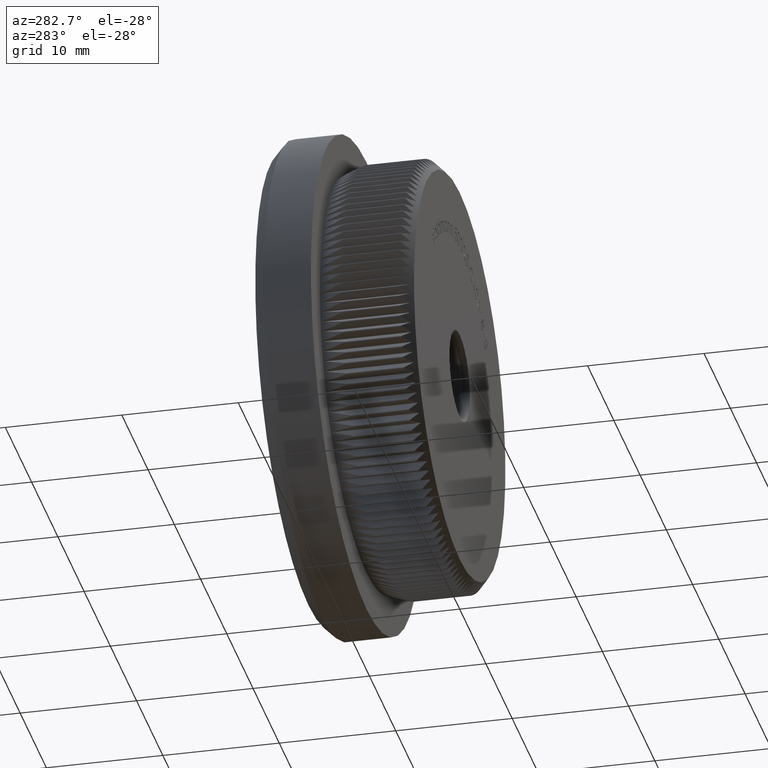
[diagram: clean part render]
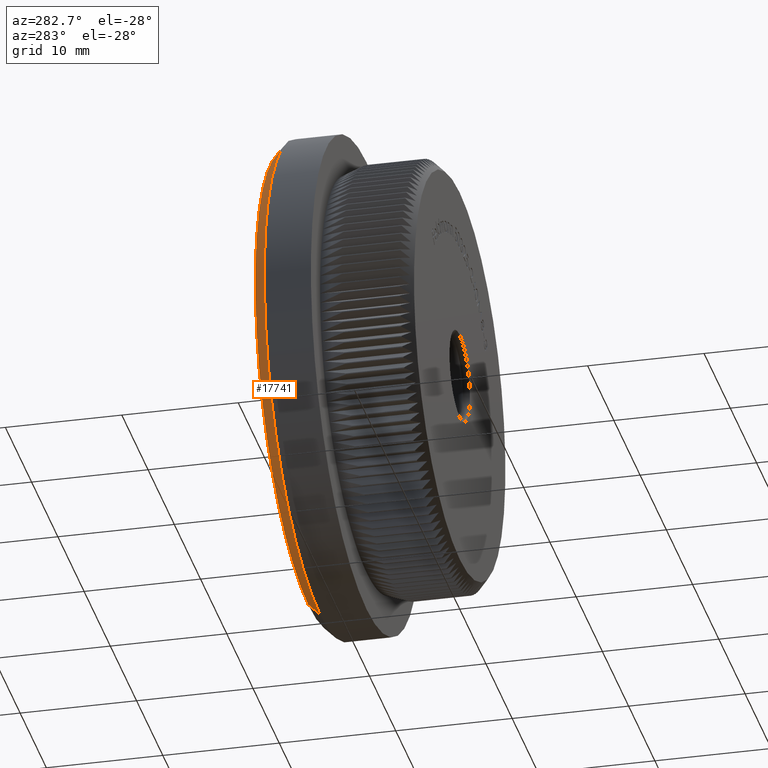
[diagram: same view with one face highlighted and labeled with its STEP entity id]
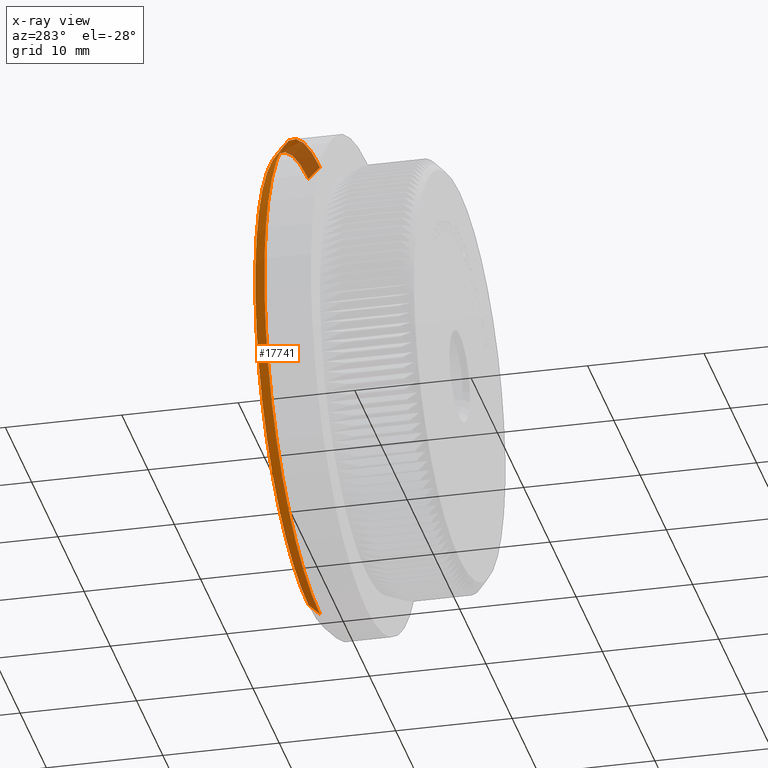
[diagram: x-ray of the same camera — body ghosted, the highlighted face saturated]
A machine part, auxiliary view. The second image highlights one B-rep face of the part: STEP entity #17741.
The next image is the same camera in x-ray: the body ghosted, the highlighted face saturated — about 12% of this face is hidden behind the body in this view.
In plain terms, the highlighted conical surface has half-angle 45 deg.
Its self-contained STEP definition (entity closure, byte-faithful):
#150 = FACE_OUTER_BOUND ( 'NONE', #2407, .T. ) ;
#750 = DIRECTION ( 'NONE',  ( 0.0000000000000000000, 0.0000000000000000000, 1.000000000000000000 ) ) ;
#825 = EDGE_CURVE ( 'NONE', #19323, #21120, #8104, .T. ) ;
#952 = VECTOR ( 'NONE', #31523, 1000.000000000000100 ) ;
#1087 = ORIENTED_EDGE ( 'NONE', *, *, #9309, .F. ) ;
#1704 = AXIS2_PLACEMENT_3D ( 'NONE', #17978, #27716, #750 ) ;
#1778 = EDGE_CURVE ( 'NONE', #8643, #19673, #13198, .T. ) ;
#2004 = CIRCLE ( 'NONE', #21160, 20.19999999999999200 ) ;
#2141 = DIRECTION ( 'NONE',  ( 0.0000000000000000000, 0.0000000000000000000, -1.000000000000000000 ) ) ;
#2407 = EDGE_LOOP ( 'NONE', ( #5934, #1087, #15738, #24785 ) ) ;
#2797 = CARTESIAN_POINT ( 'NONE',  ( 0.0000000000000000000, 13.00000000000000000, -20.19999999999999200 ) ) ;
#5934 = ORIENTED_EDGE ( 'NONE', *, *, #825, .F. ) ;
#6495 = DIRECTION ( 'NONE',  ( 8.659560562354962400E-017, -0.7071067811865451300, 0.7071067811865500200 ) ) ;
#8104 = LINE ( 'NONE', #31996, #24618 ) ;
#8643 = VERTEX_POINT ( 'NONE', #2797 ) ;
#9309 = EDGE_CURVE ( 'NONE', #8643, #19323, #2004, .T. ) ;
#13198 = LINE ( 'NONE', #13946, #952 ) ;
#13946 = CARTESIAN_POINT ( 'NONE',  ( 0.0000000000000000000, 11.99999999999999800, -21.19999999999999900 ) ) ;
#14753 = AXIS2_PLACEMENT_3D ( 'NONE', #17614, #25028, #2141 ) ;
#15738 = ORIENTED_EDGE ( 'NONE', *, *, #1778, .T. ) ;
#16279 = CARTESIAN_POINT ( 'NONE',  ( 2.596251214192388800E-015, 11.99999999999999800, 21.19999999999999900 ) ) ;
#17614 = CARTESIAN_POINT ( 'NONE',  ( 0.0000000000000000000, 11.99999999999999800, 0.0000000000000000000 ) ) ;
#17741 = ADVANCED_FACE ( 'NONE', ( #150 ), #18707, .T. ) ;
#17978 = CARTESIAN_POINT ( 'NONE',  ( 0.0000000000000000000, 11.99999999999999800, 0.0000000000000000000 ) ) ;
#18707 = CONICAL_SURFACE ( 'NONE', #14753, 21.19999999999999900, 0.7853981633974517200 ) ;
#19323 = VERTEX_POINT ( 'NONE', #20123 ) ;
#19402 = DIRECTION ( 'NONE',  ( 0.0000000000000000000, 0.0000000000000000000, 1.000000000000000000 ) ) ;
#19665 = CARTESIAN_POINT ( 'NONE',  ( 0.0000000000000000000, 11.99999999999999800, -21.19999999999999900 ) ) ;
#19673 = VERTEX_POINT ( 'NONE', #19665 ) ;
#19943 = CIRCLE ( 'NONE', #1704, 21.19999999999999900 ) ;
#20123 = CARTESIAN_POINT ( 'NONE',  ( 2.535018874235020400E-015, 13.00000000000000000, 20.19999999999999200 ) ) ;
#21120 = VERTEX_POINT ( 'NONE', #16279 ) ;
#21160 = AXIS2_PLACEMENT_3D ( 'NONE', #24335, #24649, #19402 ) ;
#24335 = CARTESIAN_POINT ( 'NONE',  ( 0.0000000000000000000, 13.00000000000000000, 0.0000000000000000000 ) ) ;
#24618 = VECTOR ( 'NONE', #6495, 1000.000000000000100 ) ;
#24649 = DIRECTION ( 'NONE',  ( 0.0000000000000000000, 1.000000000000000000, 0.0000000000000000000 ) ) ;
#24785 = ORIENTED_EDGE ( 'NONE', *, *, #32331, .F. ) ;
#25028 = DIRECTION ( 'NONE',  ( -0.0000000000000000000, -1.000000000000000000, -0.0000000000000000000 ) ) ;
#27716 = DIRECTION ( 'NONE',  ( -0.0000000000000000000, -1.000000000000000000, -0.0000000000000000000 ) ) ;
#31523 = DIRECTION ( 'NONE',  ( 0.0000000000000000000, -0.7071067811865451300, -0.7071067811865500200 ) ) ;
#31996 = CARTESIAN_POINT ( 'NONE',  ( 2.596251214192388800E-015, 11.99999999999999800, 21.19999999999999900 ) ) ;
#32331 = EDGE_CURVE ( 'NONE', #21120, #19673, #19943, .T. ) ;